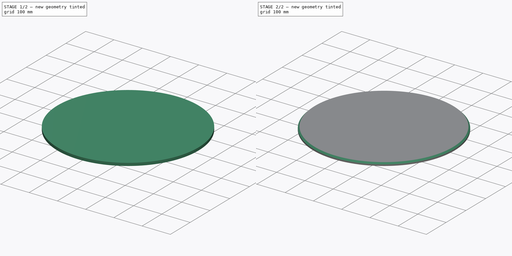
[diagram: build sequence overview — one tinted view per stage of 2, left to right]
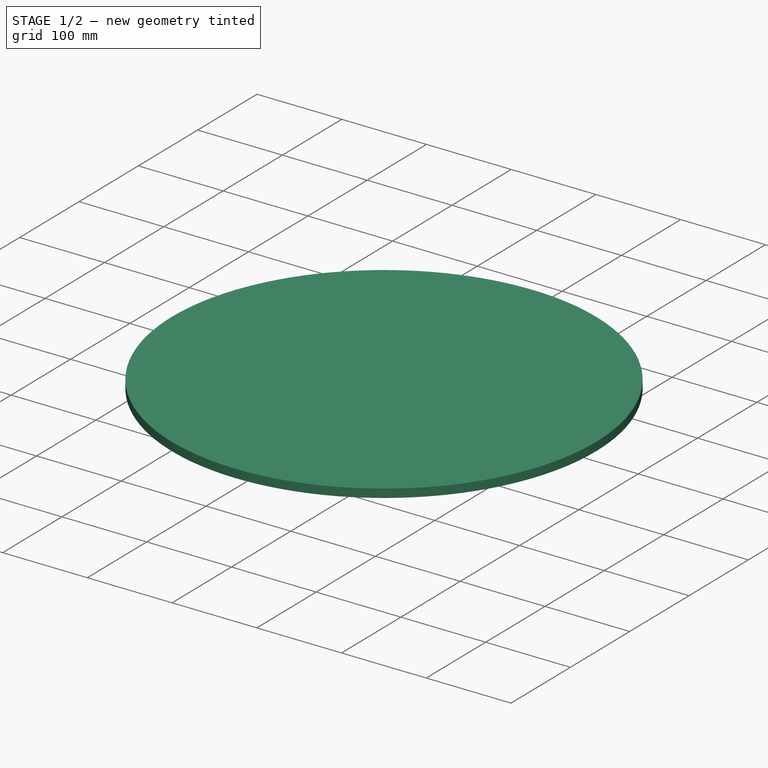
[diagram: stage 1 of 2 — iso view after this stage's code; geometry added in this stage tinted green]
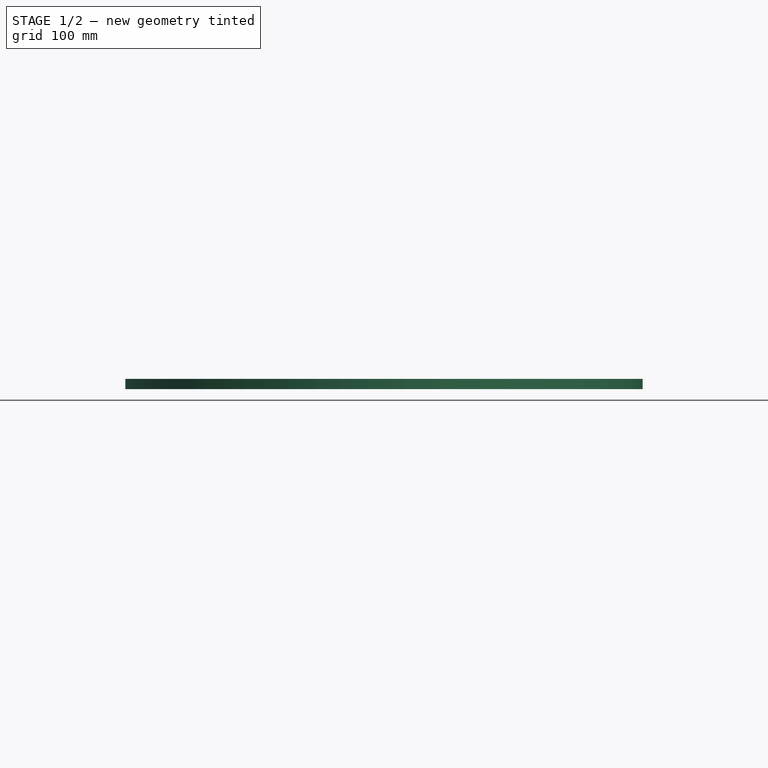
[diagram: stage 1 of 2 — front view after this stage's code; geometry added in this stage tinted green]
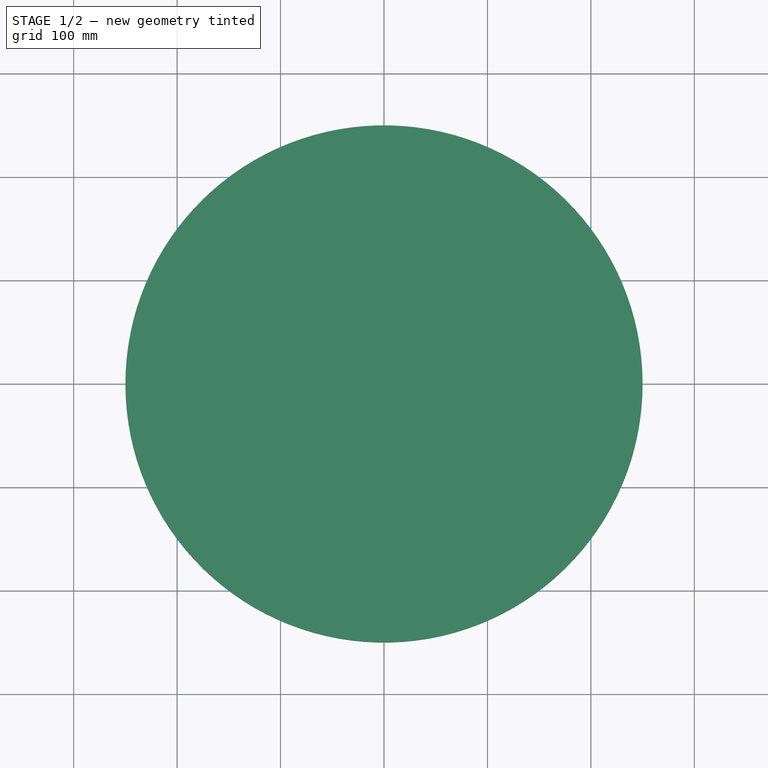
[diagram: stage 1 of 2 — top view after this stage's code; geometry added in this stage tinted green]
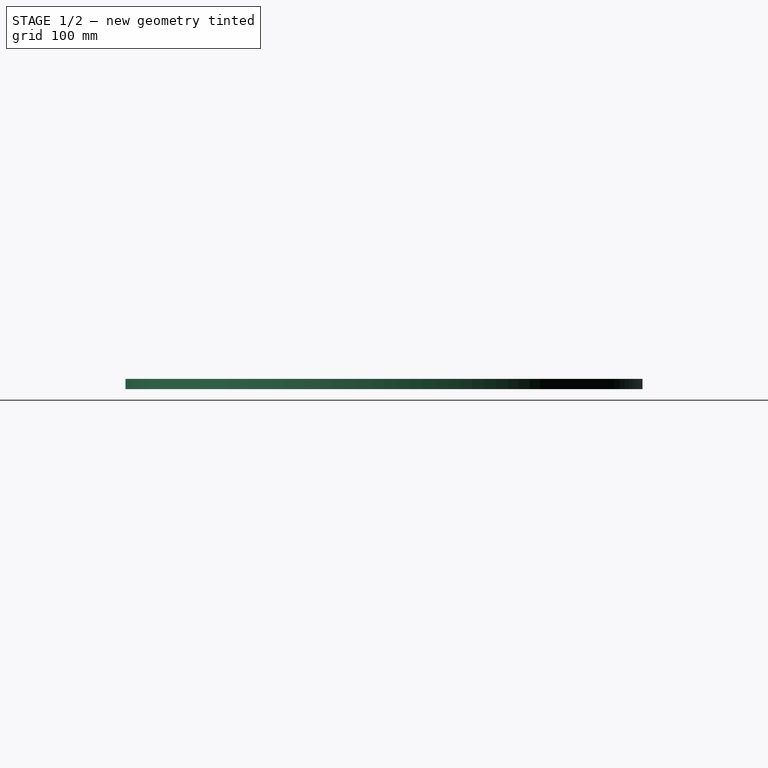
[diagram: stage 1 of 2 — right view after this stage's code; geometry added in this stage tinted green]
FCSTD DOCUMENT  (FreeCAD 0.20R28730 (Git))
Label: OpenSolder Render
License: All rights reserved
LicenseURL: http://en.wikipedia.org/wiki/All_rights_reserved
objects: App::DocumentObjectGroup×3, Spreadsheet::Sheet×3, PartDesign::CoordinateSystem×2, App::Link×2, App::FeaturePython×1, Sketcher::SketchObject×1, PartDesign::Pad×1, PartDesign::Chamfer×1, PartDesign::Body×1, App::Part×1
note: 8 computed .brp shape members not serialized (recipe doc carries the construction recipe); baked Part::Feature solids carry a one-line shape summary decoded from their .brp
EXTERNAL_REF file=OpenSolder Station.FCStd obj=LCS_Origin
EXTERNAL_REF file=OpenSolder Station.FCStd obj=Assembly
EXTERNAL_REF file=OpenSolder Stand.FCStd obj=LCS_Origin
EXTERNAL_REF file=OpenSolder Stand.FCStd obj=Assembly

FEATURE [App::DocumentObjectGroup] Parts
FEATURE [PartDesign::CoordinateSystem] LCS_Origin
  AttacherType = Attacher::AttachEngine3D
  MapMode = 2
  Support = -> [X_Axis]
FEATURE [App::FeaturePython] Variables  # WARN: FeaturePython — macro-defined, semantics opaque (R4)
  Type = App::PropertyContainer
FEATURE [App::DocumentObjectGroup] Constraints
FEATURE [App::Link] OpenSolder_Station
  AttachedBy = #LCS_Origin
  AttachedTo = Parent Assembly#LCS_Origin
  AttachmentOffset = pos=(-80,0,0) rot=(0,0,-1;0.174533rad)
  LinkPlacement = pos=(-80,0,0) rot=(0,0,-1;0.174533rad)
  LinkedObject = -> <external OpenSolder Station.FCStd>#Assembly
  Placement = pos=(-80,0,0) rot=(0,0,-1;0.174533rad)
  SolverId = Asm4EE
  expr: Placement = LCS_Origin.Placement * AttachmentOffset * OpenSolder_Station#LCS_Origin.Placement ^ -1
FEATURE [App::Link] OpenSolder_Stand
  AttachedBy = #LCS_Origin
  AttachedTo = Parent Assembly#LCS_Origin
  AttachmentOffset = pos=(80,-95,0) rot=(0,0,1;0.174533rad)
  LinkPlacement = pos=(80,-95,0) rot=(0,0,1;0.174533rad)
  LinkedObject = -> <external OpenSolder Stand.FCStd>#Assembly
  Placement = pos=(80,-95,0) rot=(0,0,1;0.174533rad)
  SolverId = Asm4EE
  expr: Placement = LCS_Origin.Placement * AttachmentOffset * OpenSolder_Stand#LCS_Origin.Placement ^ -1
FEATURE [Spreadsheet::Sheet] Default
  cells = A1=Asm4::ConfigurationTable; A2=0; A4=ObjectName; B4=Visible; C4=Assembly Type; D4=Pos. X; E4=Pos. Y; F4=Pos. Z; G4=Rot. Yaw; H4=Rot. Pitch; I4=Rot. Roll; A5(AssemblyOpenSolder_Stand)=Assembly.OpenSolder_Stand; B5=True; C5=Asm4EE; D5=120; E5=-84; F5=0; G5=0; H5=0; I5=0; A6(AssemblyOpenSolder_Station)=Assembly.OpenSolder_Station; B6=True; C6=Asm4EE; D6=0; E6=0; F6=0; G6=0; H6=0; I6=0; A7(AssemblyLCS_Origin)=Assembly.LCS_Origin; B7=False; C7=Attacher
FEATURE [Spreadsheet::Sheet] View_1
  cells = A1=Asm4::ConfigurationTable; A2=0; A4=ObjectName; B4=Visible; C4=Assembly Type; D4=Pos. X; E4=Pos. Y; F4=Pos. Z; G4=Rot. Yaw; H4=Rot. Pitch; I4=Rot. Roll; A5(AssemblyOpenSolder_Stand)=Assembly.OpenSolder_Stand; B5=True; C5=Asm4EE; D5=80; E5=-95; F5=0; G5=10; H5=0; I5=0; A6(AssemblyOpenSolder_Station)=Assembly.OpenSolder_Station; B6=True; C6=Asm4EE; D6=-80; E6=0; F6=0; G6=-10; H6=0; I6=0; A7(AssemblyLCS_Origin)=Assembly.LCS_Origin; B7=False; C7=Attacher
FEATURE [Spreadsheet::Sheet] View_2
  cells = A1=Asm4::ConfigurationTable; A2=0; A4=ObjectName; B4=Visible; C4=Assembly Type; D4=Pos. X; E4=Pos. Y; F4=Pos. Z; G4=Rot. Yaw; H4=Rot. Pitch; I4=Rot. Roll; A5(AssemblyOpenSolder_Stand)=Assembly.OpenSolder_Stand; B5=True; C5=Asm4EE; D5=-56.5; E5=-84; F5=54.5; G5=0; H5=0; I5=0; A6(AssemblyOpenSolder_Station)=Assembly.OpenSolder_Station; B6=True; C6=Asm4EE; D6=0; E6=0; F6=0; G6=0; H6=0; I6=0; A7(AssemblyLCS_Origin)=Assembly.LCS_Origin; B7=False; C7=Attacher
FEATURE [App::DocumentObjectGroup] Configurations
  Group = -> [Default,View_1,View_2]
FEATURE [PartDesign::CoordinateSystem] LCS_0
  AttacherType = Attacher::AttachEngine3D
  MapMode = 2
  Support = -> [X_Axis001]
FEATURE [Sketcher::SketchObject] Sketch
  FullyConstrained = true
  MapMode = 5
  Support = -> [XY_Plane001]
  sketch-geometry (1):
    g0: Circle CenterX=0 CenterY=0 CenterZ=0 NormalX=0 NormalY=0 NormalZ=1 AngleXU=0 Radius=250
  constraints (2):
    c: Coincident(g0,g-1)
    c: Diameter(g0) = 500
FEATURE [PartDesign::Pad] Pad
  Direction = (0,0,1)
  Length = 10
  Length2 = 10
  Profile = -> Sketch
  ReferenceAxis = -> Sketch [N_Axis]
  Refine = true
  Reversed = true
  Type = 0
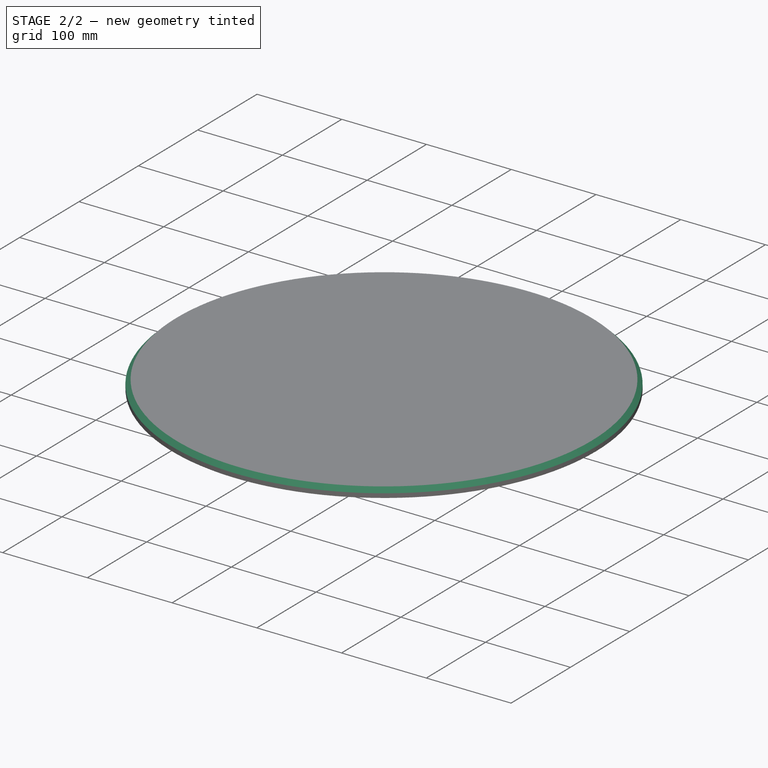
[diagram: stage 2 of 2 — iso view after this stage's code; geometry added in this stage tinted green]
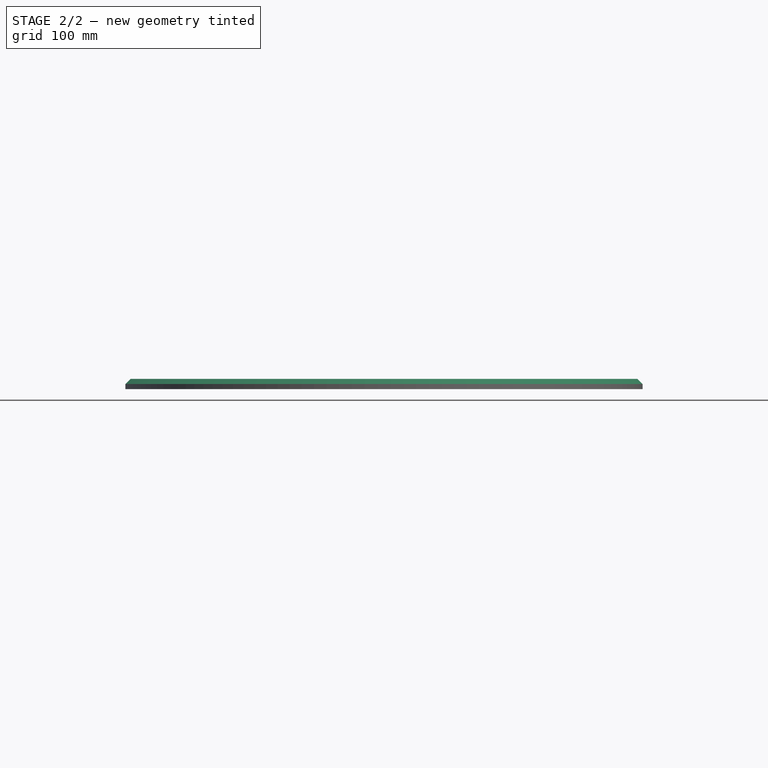
[diagram: stage 2 of 2 — front view after this stage's code; geometry added in this stage tinted green]
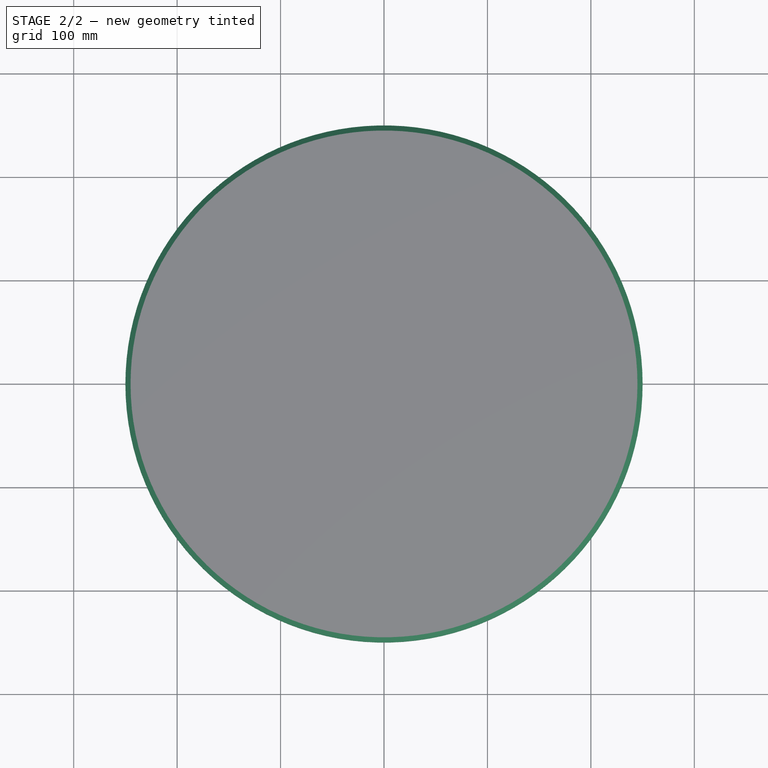
[diagram: stage 2 of 2 — top view after this stage's code; geometry added in this stage tinted green]
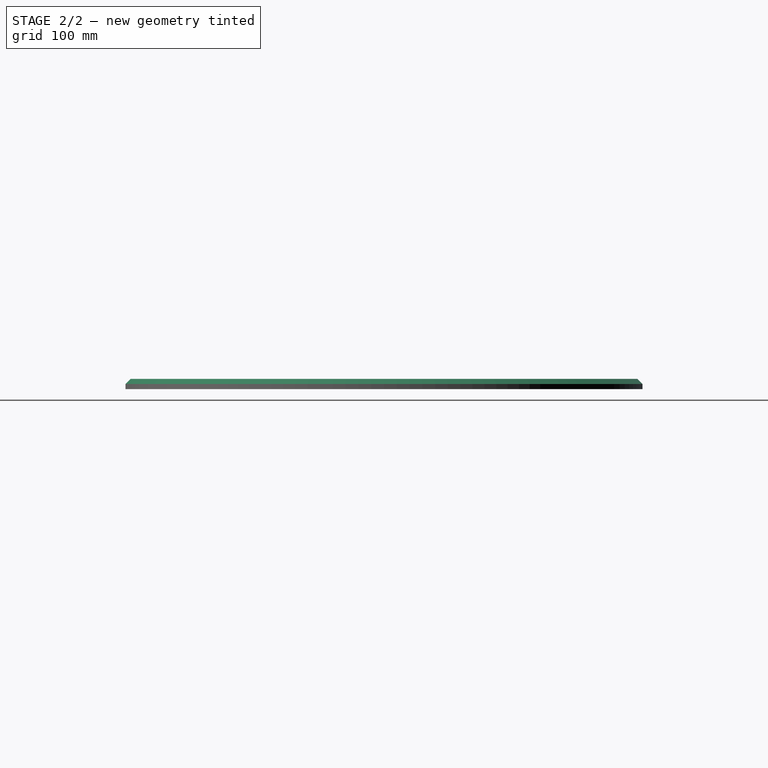
[diagram: stage 2 of 2 — right view after this stage's code; geometry added in this stage tinted green]
FEATURE [PartDesign::Chamfer] Chamfer
  Angle = 45
  Base = -> Pad [Edge2]
  BaseFeature = -> Pad
  ChamferType = 0
  FlipDirection = false
  Refine = true
  Size = 5
  Size2 = 1
  SupportTransform = false
  UseAllEdges = false
FEATURE [PartDesign::Body] Base
  Group = -> [LCS_0,Sketch,Pad,Chamfer]
  Origin = -> Origin001
  Placement = pos=(0,0,-3) rot=(0,0,1;0rad)
  Tip = -> Chamfer
FEATURE [App::Part] Assembly
  AssemblyType = Part::Link
  Group = -> [LCS_Origin,Variables,Constraints,Configurations,OpenSolder_Station,OpenSolder_Stand,Default,View_1,View_2,Base]
  Origin = -> Origin
  Type = Assembly
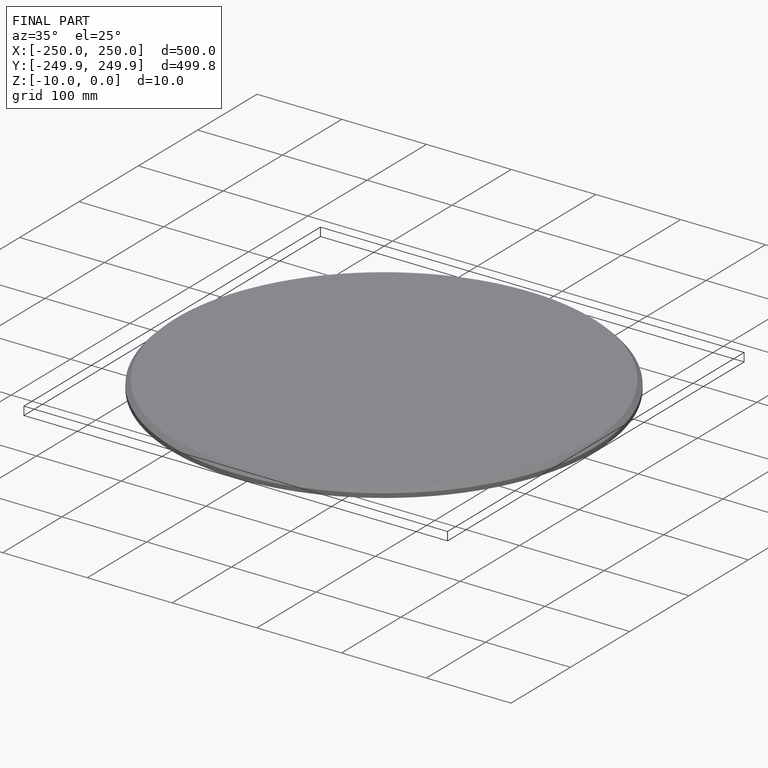
[diagram: finished part — iso view with bounding-box wireframe]
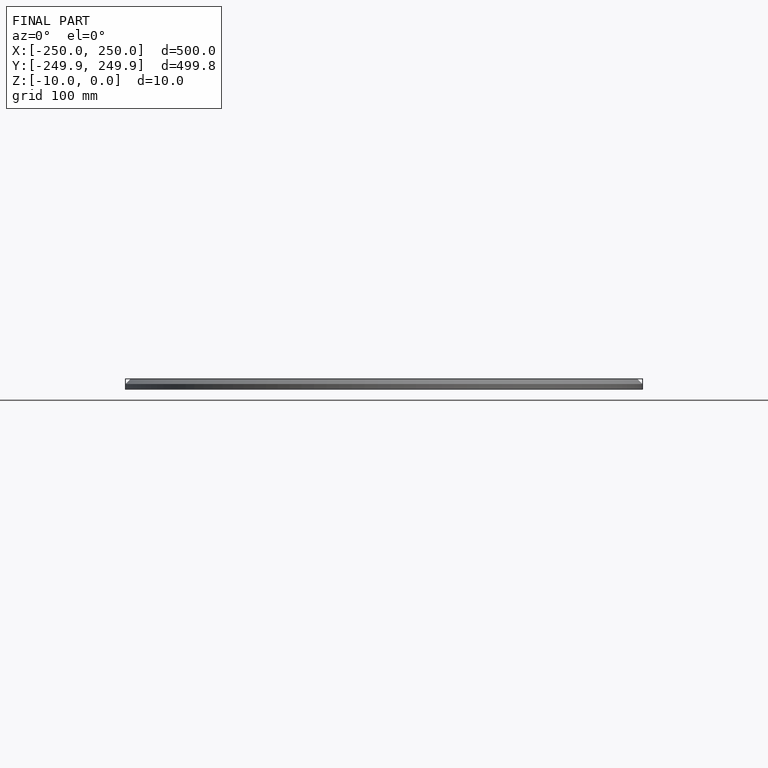
[diagram: finished part — front view with bounding-box wireframe]
